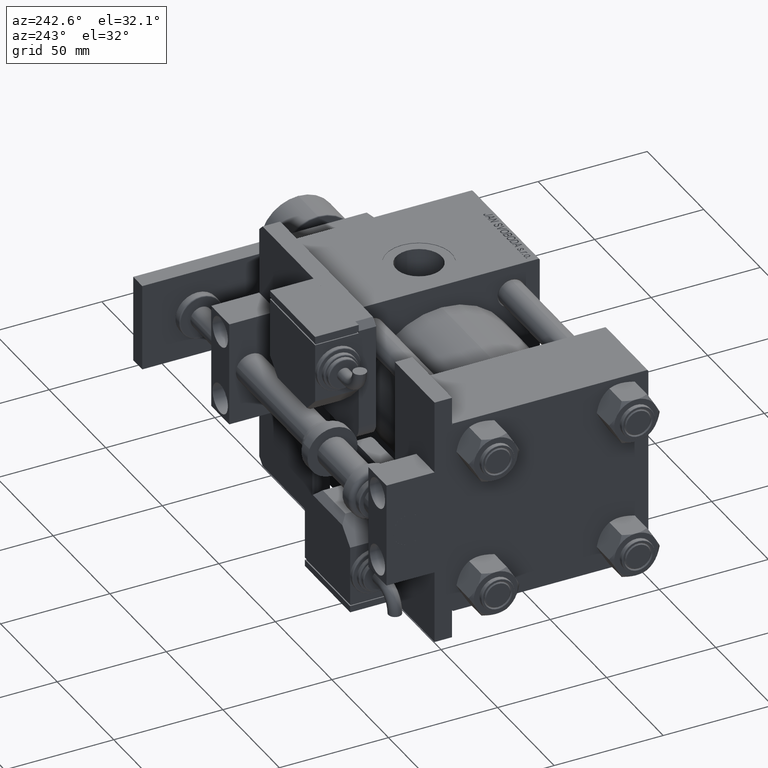
[diagram: clean part render]
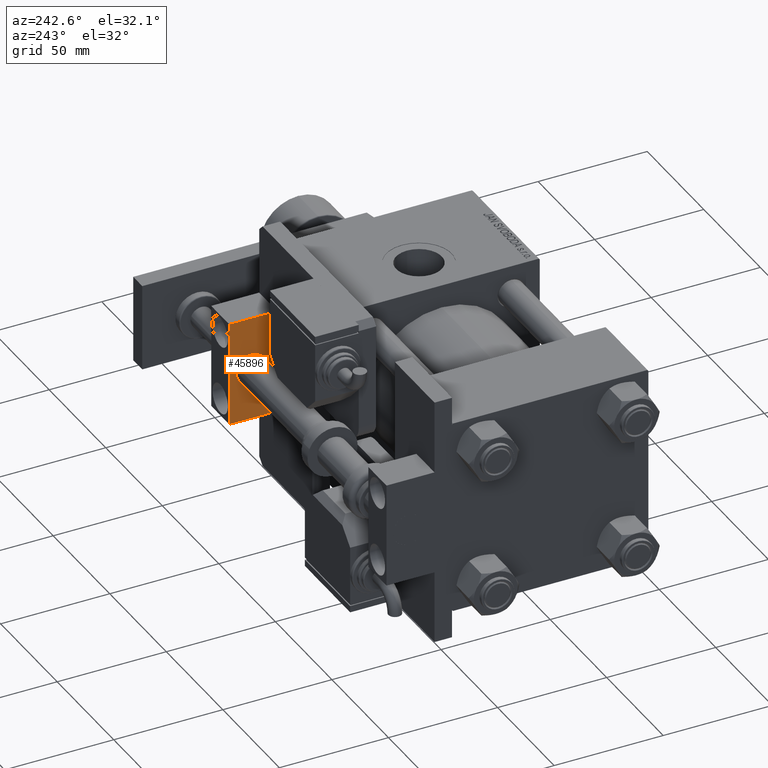
[diagram: same view with one face highlighted and labeled with its STEP entity id]
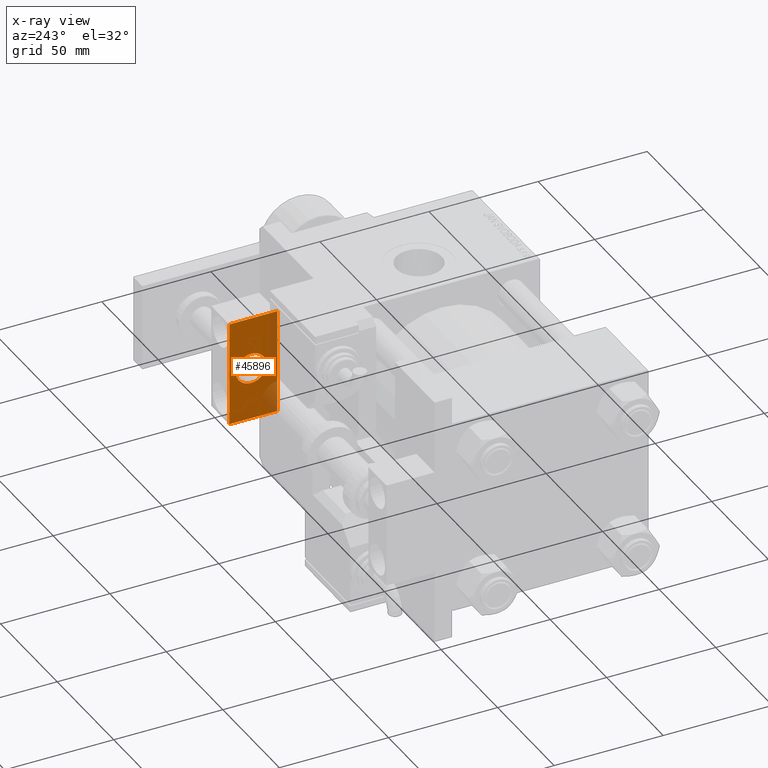
[diagram: x-ray of the same camera — body ghosted, the highlighted face saturated]
A machine part, auxiliary view. The second image highlights one B-rep face of the part: STEP entity #45896.
The next image is the same camera in x-ray: the body ghosted, the highlighted face saturated — about 19% of this face is hidden behind the body in this view.
In plain terms, the highlighted planar face has unit normal (1, 0, -0).
Its self-contained STEP definition (entity closure, byte-faithful):
#1029 = VECTOR ( 'NONE', #2038, 1000.000000000000000 ) ;
#1870 = CARTESIAN_POINT ( 'NONE',  ( -7.000000000000000000, 1.000000000000005329, -16.00000000000000000 ) ) ;
#2038 = DIRECTION ( 'NONE',  ( 1.577021341797097807E-16, -1.000000000000000000, 0.000000000000000000 ) ) ;
#2762 = DIRECTION ( 'NONE',  ( 1.000000000000000000, 0.000000000000000000, 0.000000000000000000 ) ) ;
#2858 = VECTOR ( 'NONE', #34841, 1000.000000000000000 ) ;
#3864 = AXIS2_PLACEMENT_3D ( 'NONE', #21480, #7009, #8626 ) ;
#4862 = VERTEX_POINT ( 'NONE', #42089 ) ;
#5731 = ORIENTED_EDGE ( 'NONE', *, *, #8459, .T. ) ;
#6019 = DIRECTION ( 'NONE',  ( -1.577021341797098053E-16, 1.000000000000000000, -0.000000000000000000 ) ) ;
#7009 = DIRECTION ( 'NONE',  ( 0.000000000000000000, 0.000000000000000000, 1.000000000000000000 ) ) ;
#8459 = EDGE_CURVE ( 'NONE', #30248, #13581, #55896, .T. ) ;
#8626 = DIRECTION ( 'NONE',  ( 1.000000000000000000, 0.000000000000000000, -0.000000000000000000 ) ) ;
#10123 = CARTESIAN_POINT ( 'NONE',  ( 23.99999999999999645, 10.99999999999999289, -16.00000000000000000 ) ) ;
#11353 = EDGE_CURVE ( 'NONE', #24754, #24721, #14275, .T. ) ;
#12581 = AXIS2_PLACEMENT_3D ( 'NONE', #20167, #47230, #2762 ) ;
#13581 = VERTEX_POINT ( 'NONE', #1870 ) ;
#14275 = LINE ( 'NONE', #27645, #25055 ) ;
#14659 = CARTESIAN_POINT ( 'NONE',  ( -23.99999999999999289, -10.99999999999999645, -16.00000000000000000 ) ) ;
#16243 = ORIENTED_EDGE ( 'NONE', *, *, #44186, .F. ) ;
#16926 = PLANE ( 'NONE',  #3864 ) ;
#17324 = EDGE_CURVE ( 'NONE', #4862, #24754, #53392, .T. ) ;
#17466 = CARTESIAN_POINT ( 'NONE',  ( -23.99999999999999645, 11.00000000000000000, -16.00000000000000000 ) ) ;
#17480 = EDGE_LOOP ( 'NONE', ( #16243, #42025, #32097, #24501 ) ) ;
#17770 = FACE_OUTER_BOUND ( 'NONE', #17480, .T. ) ;
#18893 = CARTESIAN_POINT ( 'NONE',  ( -23.99999999999999645, 11.00000000000000000, -16.00000000000000000 ) ) ;
#19254 = EDGE_CURVE ( 'NONE', #21256, #4862, #39136, .T. ) ;
#19661 = DIRECTION ( 'NONE',  ( 1.000000000000000000, -7.228014483236697048E-17, 0.000000000000000000 ) ) ;
#19718 = LINE ( 'NONE', #50493, #27498 ) ;
#20167 = CARTESIAN_POINT ( 'NONE',  ( 0.000000000000000000, 1.000000000000004441, -16.00000000000000000 ) ) ;
#21256 = VERTEX_POINT ( 'NONE', #10123 ) ;
#21480 = CARTESIAN_POINT ( 'NONE',  ( 0.000000000000000000, 0.000000000000000000, -16.00000000000000000 ) ) ;
#22793 = DIRECTION ( 'NONE',  ( 0.000000000000000000, 0.000000000000000000, 1.000000000000000000 ) ) ;
#24501 = ORIENTED_EDGE ( 'NONE', *, *, #19254, .F. ) ;
#24721 = VERTEX_POINT ( 'NONE', #39478 ) ;
#24754 = VERTEX_POINT ( 'NONE', #14659 ) ;
#25055 = VECTOR ( 'NONE', #19661, 1000.000000000000000 ) ;
#27498 = VECTOR ( 'NONE', #6019, 1000.000000000000000 ) ;
#27645 = CARTESIAN_POINT ( 'NONE',  ( -23.99999999999999289, -10.99999999999999645, -16.00000000000000000 ) ) ;
#30248 = VERTEX_POINT ( 'NONE', #45418 ) ;
#32097 = ORIENTED_EDGE ( 'NONE', *, *, #17324, .F. ) ;
#32234 = AXIS2_PLACEMENT_3D ( 'NONE', #36180, #22793, #39618 ) ;
#33506 = CIRCLE ( 'NONE', #12581, 7.000000000000000000 ) ;
#34841 = DIRECTION ( 'NONE',  ( -1.000000000000000000, 1.445602896647339410E-16, -0.000000000000000000 ) ) ;
#36180 = CARTESIAN_POINT ( 'NONE',  ( 0.000000000000000000, 1.000000000000004441, -16.00000000000000000 ) ) ;
#39136 = LINE ( 'NONE', #17466, #2858 ) ;
#39478 = CARTESIAN_POINT ( 'NONE',  ( 24.00000000000000000, -11.00000000000000000, -16.00000000000000000 ) ) ;
#39618 = DIRECTION ( 'NONE',  ( 1.000000000000000000, 0.000000000000000000, 0.000000000000000000 ) ) ;
#39957 = EDGE_CURVE ( 'NONE', #13581, #30248, #33506, .T. ) ;
#42025 = ORIENTED_EDGE ( 'NONE', *, *, #11353, .F. ) ;
#42089 = CARTESIAN_POINT ( 'NONE',  ( -23.99999999999999645, 11.00000000000000000, -16.00000000000000000 ) ) ;
#44186 = EDGE_CURVE ( 'NONE', #24721, #21256, #19718, .T. ) ;
#45418 = CARTESIAN_POINT ( 'NONE',  ( 7.000000000000000000, 1.000000000000004441, -16.00000000000000000 ) ) ;
#45896 = ADVANCED_FACE ( 'NONE', ( #54919, #17770 ), #16926, .F. ) ;
#47230 = DIRECTION ( 'NONE',  ( 0.000000000000000000, 0.000000000000000000, 1.000000000000000000 ) ) ;
#49327 = ORIENTED_EDGE ( 'NONE', *, *, #39957, .T. ) ;
#49679 = EDGE_LOOP ( 'NONE', ( #5731, #49327 ) ) ;
#50493 = CARTESIAN_POINT ( 'NONE',  ( 23.99999999999999645, 10.99999999999999289, -16.00000000000000000 ) ) ;
#53392 = LINE ( 'NONE', #18893, #1029 ) ;
#54919 = FACE_BOUND ( 'NONE', #49679, .T. ) ;
#55896 = CIRCLE ( 'NONE', #32234, 7.000000000000000000 ) ;